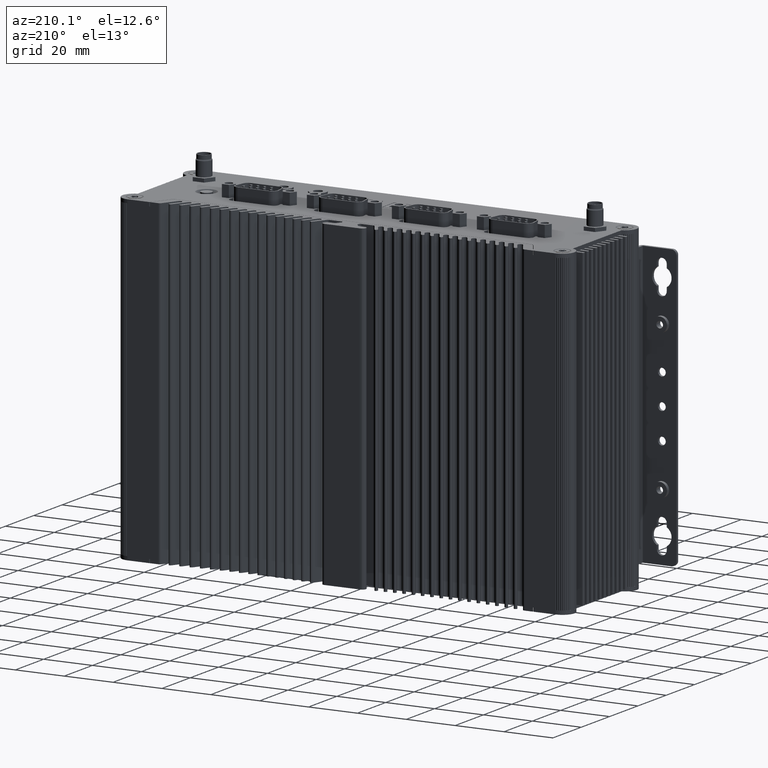
[diagram: clean part render]
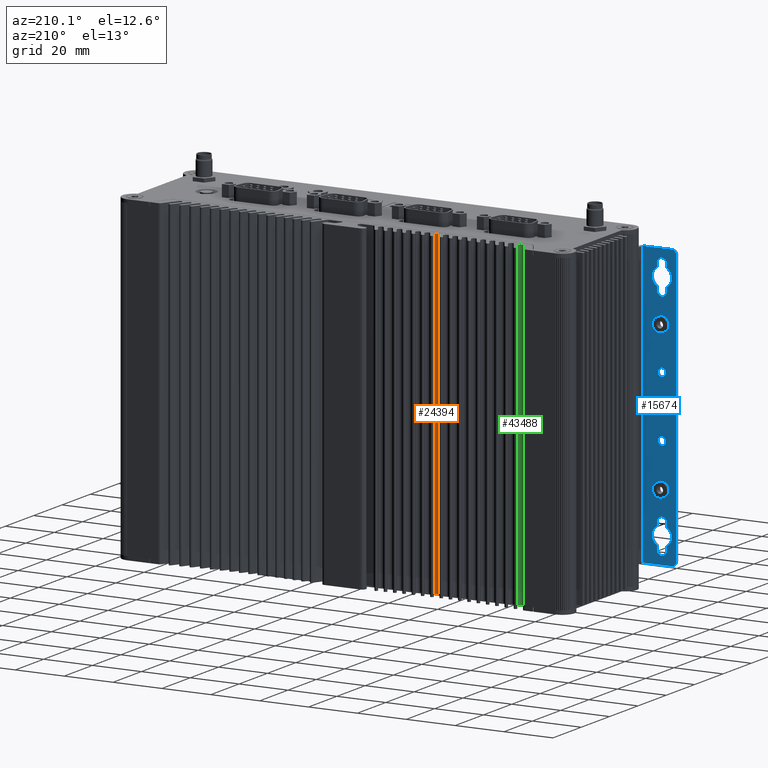
[diagram: same view with three faces highlighted in distinct colors, each labeled with its STEP entity id]
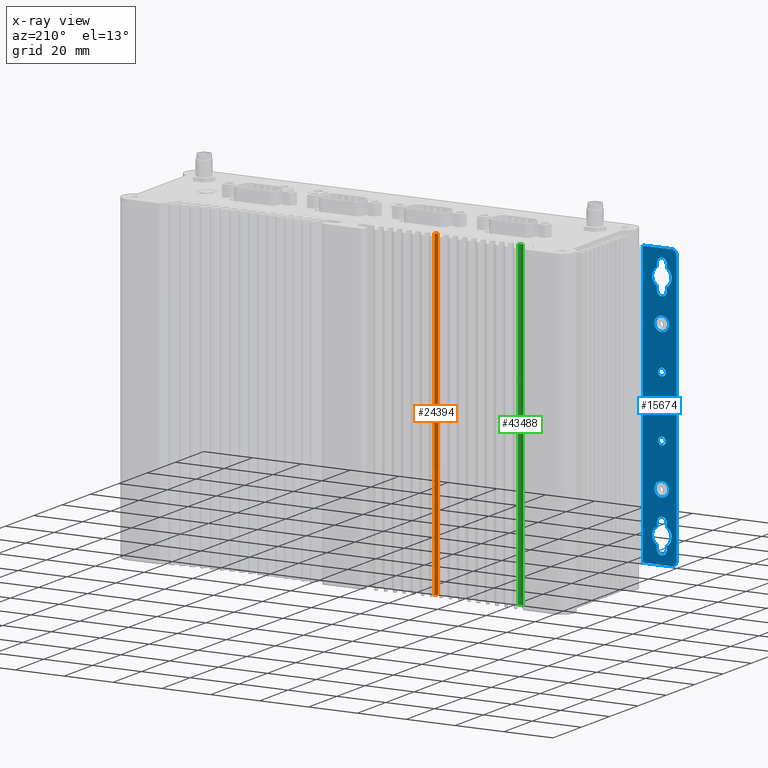
[diagram: x-ray of the same camera — body ghosted, the three highlighted faces saturated]
A machine part, auxiliary view with three faces highlighted in distinct colors.
The next image is the same camera in x-ray (body ghosted, the three faces saturated) — at least one of them is partly hidden behind the body in this view.
Their STEP definitions:

[orange] entity #24394 — the highlighted cylindrical surface (edge-blend (fillet) strip) has radius 1 mm, axis along (0, 0, 1).
#8144 = VERTEX_POINT ( 'NONE', #89115 ) ;
#8341 = VERTEX_POINT ( 'NONE', #72186 ) ;
#8479 = EDGE_LOOP ( 'NONE', ( #52579, #52937, #52946, #52933 ) ) ;
#16832 = LINE ( 'NONE', #16835, #65957 ) ;
#16835 = CARTESIAN_POINT ( 'NONE',  ( -6.164513203176323200, 12.88363076343135200, -130.9999999999813600 ) ) ;
#16837 = DIRECTION ( 'NONE',  ( 0.0000000000000000000, 0.0000000000000000000, 1.000000000000000000 ) ) ;
#24394 = ADVANCED_FACE ( 'NONE', ( #60762 ), #60768, .F. ) ;
#25921 = EDGE_CURVE ( 'NONE', #8341, #8144, #64538, .T. ) ;
#25928 = EDGE_CURVE ( 'NONE', #8341, #54229, #57277, .T. ) ;
#25929 = EDGE_CURVE ( 'NONE', #8144, #55057, #57279, .T. ) ;
#26136 = EDGE_CURVE ( 'NONE', #54229, #55057, #16832, .T. ) ;
#52579 = ORIENTED_EDGE ( 'NONE', *, *, #26136, .F. ) ;
#52933 = ORIENTED_EDGE ( 'NONE', *, *, #25929, .T. ) ;
#52937 = ORIENTED_EDGE ( 'NONE', *, *, #25928, .F. ) ;
#52946 = ORIENTED_EDGE ( 'NONE', *, *, #25921, .T. ) ;
#54229 = VERTEX_POINT ( 'NONE', #95617 ) ;
#55057 = VERTEX_POINT ( 'NONE', #56178 ) ;
#56178 = CARTESIAN_POINT ( 'NONE',  ( -6.164513203176323200, 12.88363076343135200, 1.863786902589481500E-011 ) ) ;
#57268 = VECTOR ( 'NONE', #64540, 1000.000000000000000 ) ;
#57277 = CIRCLE ( 'NONE', #57280, 0.9999999999202834300 ) ;
#57279 = CIRCLE ( 'NONE', #57282, 0.9999999999202834300 ) ;
#57280 = AXIS2_PLACEMENT_3D ( 'NONE', #64585, #64587, #64589 ) ;
#57282 = AXIS2_PLACEMENT_3D ( 'NONE', #64593, #64595, #64597 ) ;
#60762 = FACE_OUTER_BOUND ( 'NONE', #8479, .T. ) ;
#60764 = DIRECTION ( 'NONE',  ( 0.0000000000000000000, 0.0000000000000000000, 1.000000000000000000 ) ) ;
#60768 = CYLINDRICAL_SURFACE ( 'NONE', #94399, 0.9999999999202834300 ) ;
#60772 = CARTESIAN_POINT ( 'NONE',  ( -7.164513203096606600, 12.88363076343135200, -130.9999999999813600 ) ) ;
#60773 = DIRECTION ( 'NONE',  ( 1.000000000000000000, 0.0000000000000000000, 0.0000000000000000000 ) ) ;
#64538 = LINE ( 'NONE', #64539, #57268 ) ;
#64539 = CARTESIAN_POINT ( 'NONE',  ( -7.162452435180738600, 11.88363288689552800, -130.9999999999813600 ) ) ;
#64540 = DIRECTION ( 'NONE',  ( 0.0000000000000000000, 0.0000000000000000000, 1.000000000000000000 ) ) ;
#64585 = CARTESIAN_POINT ( 'NONE',  ( -7.164513203096606600, 12.88363076343135200, -130.9999999999813600 ) ) ;
#64587 = DIRECTION ( 'NONE',  ( -0.0000000000000000000, 0.0000000000000000000, 1.000000000000000000 ) ) ;
#64589 = DIRECTION ( 'NONE',  ( 1.000000000000000000, 0.0000000000000000000, 0.0000000000000000000 ) ) ;
#64593 = CARTESIAN_POINT ( 'NONE',  ( -7.164513203096606600, 12.88363076343135200, 1.863786902589481500E-011 ) ) ;
#64595 = DIRECTION ( 'NONE',  ( -0.0000000000000000000, 0.0000000000000000000, 1.000000000000000000 ) ) ;
#64597 = DIRECTION ( 'NONE',  ( 1.000000000000000000, 0.0000000000000000000, 0.0000000000000000000 ) ) ;
#65957 = VECTOR ( 'NONE', #16837, 1000.000000000000000 ) ;
#72186 = CARTESIAN_POINT ( 'NONE',  ( -7.162452435180738600, 11.88363288689552800, -130.9999999999813600 ) ) ;
#89115 = CARTESIAN_POINT ( 'NONE',  ( -7.162452435180738600, 11.88363288689552800, 1.863786902589481500E-011 ) ) ;
#94399 = AXIS2_PLACEMENT_3D ( 'NONE', #60772, #60764, #60773 ) ;
#95617 = CARTESIAN_POINT ( 'NONE',  ( -6.164513203176323200, 12.88363076343135200, -130.9999999999813600 ) ) ;

[blue] entity #15674 — the highlighted planar face has unit normal (0, -1, 0).
#593 = CARTESIAN_POINT ( 'NONE',  ( -68.63763054334334900, -40.01636936268161500, -112.8999999999816300 ) ) ;
#595 = DIRECTION ( 'NONE',  ( 0.0000000000000000000, -1.000000000000000000, 0.0000000000000000000 ) ) ;
#596 = DIRECTION ( 'NONE',  ( 6.938893903907197600E-015, 0.0000000000000000000, -1.000000000000000000 ) ) ;
#7635 = CIRCLE ( 'NONE', #7666, 3.000000000000002700 ) ;
#7664 = VECTOR ( 'NONE', #84098, 1000.000000000000000 ) ;
#7666 = AXIS2_PLACEMENT_3D ( 'NONE', #84095, #84096, #84097 ) ;
#7678 = CIRCLE ( 'NONE', #7682, 3.000000000000002700 ) ;
#7682 = AXIS2_PLACEMENT_3D ( 'NONE', #84123, #84124, #84125 ) ;
#7696 = CIRCLE ( 'NONE', #7702, 1.999999999999972200 ) ;
#7702 = AXIS2_PLACEMENT_3D ( 'NONE', #84158, #84159, #84160 ) ;
#7705 = VECTOR ( 'NONE', #41962, 1000.000000000000000 ) ;
#7706 = CIRCLE ( 'NONE', #7708, 2.000000000000001800 ) ;
#7708 = AXIS2_PLACEMENT_3D ( 'NONE', #41957, #41958, #41959 ) ;
#7709 = VECTOR ( 'NONE', #41973, 1000.000000000000000 ) ;
#7723 = VECTOR ( 'NONE', #41993, 1000.000000000000000 ) ;
#7735 = VECTOR ( 'NONE', #42020, 1000.000000000000000 ) ;
#7873 = CIRCLE ( 'NONE', #7880, 2.000000000000003600 ) ;
#7879 = VECTOR ( 'NONE', #42315, 1000.000000000000000 ) ;
#7880 = AXIS2_PLACEMENT_3D ( 'NONE', #42305, #42306, #42307 ) ;
#7900 = CIRCLE ( 'NONE', #7906, 4.000000000000045300 ) ;
#7906 = AXIS2_PLACEMENT_3D ( 'NONE', #42355, #42356, #42357 ) ;
#7907 = CIRCLE ( 'NONE', #7913, 2.000000000000029300 ) ;
#7910 = VECTOR ( 'NONE', #42377, 1000.000000000000000 ) ;
#7913 = AXIS2_PLACEMENT_3D ( 'NONE', #42371, #42372, #42373 ) ;
#7920 = CIRCLE ( 'NONE', #7922, 4.000000000000031100 ) ;
#7922 = AXIS2_PLACEMENT_3D ( 'NONE', #42386, #42387, #42388 ) ;
#7931 = VECTOR ( 'NONE', #42407, 1000.000000000000000 ) ;
#7937 = VECTOR ( 'NONE', #42418, 1000.000000000000000 ) ;
#7949 = CIRCLE ( 'NONE', #7952, 1.600000000000045800 ) ;
#7952 = AXIS2_PLACEMENT_3D ( 'NONE', #42438, #42439, #42440 ) ;
#7956 = CIRCLE ( 'NONE', #7958, 1.600000000000045800 ) ;
#7958 = AXIS2_PLACEMENT_3D ( 'NONE', #42450, #42451, #42452 ) ;
#7963 = CIRCLE ( 'NONE', #7965, 1.600000000000045800 ) ;
#7965 = AXIS2_PLACEMENT_3D ( 'NONE', #42462, #42463, #42464 ) ;
#7976 = CIRCLE ( 'NONE', #7980, 2.000000000000001800 ) ;
#7980 = AXIS2_PLACEMENT_3D ( 'NONE', #42491, #42492, #42493 ) ;
#7981 = VECTOR ( 'NONE', #42509, 1000.000000000000000 ) ;
#7994 = VECTOR ( 'NONE', #42522, 1000.000000000000000 ) ;
#7998 = CIRCLE ( 'NONE', #8004, 4.000000000000045300 ) ;
#8001 = VECTOR ( 'NONE', #42548, 1000.000000000000000 ) ;
#8004 = AXIS2_PLACEMENT_3D ( 'NONE', #42534, #42535, #42536 ) ;
#8020 = CIRCLE ( 'NONE', #20896, 2.000000000000001800 ) ;
#8772 = VERTEX_POINT ( 'NONE', #72493 ) ;
#8917 = VERTEX_POINT ( 'NONE', #72616 ) ;
#8991 = VERTEX_POINT ( 'NONE', #72681 ) ;
#8993 = VERTEX_POINT ( 'NONE', #72682 ) ;
#9062 = VERTEX_POINT ( 'NONE', #72743 ) ;
#9096 = VERTEX_POINT ( 'NONE', #72772 ) ;
#9479 = VERTEX_POINT ( 'NONE', #72983 ) ;
#9563 = VERTEX_POINT ( 'NONE', #73029 ) ;
#9604 = VERTEX_POINT ( 'NONE', #73048 ) ;
#9606 = VERTEX_POINT ( 'NONE', #73049 ) ;
#9621 = VERTEX_POINT ( 'NONE', #73056 ) ;
#9629 = VERTEX_POINT ( 'NONE', #73061 ) ;
#9638 = VERTEX_POINT ( 'NONE', #73066 ) ;
#9645 = VERTEX_POINT ( 'NONE', #73069 ) ;
#9655 = VERTEX_POINT ( 'NONE', #73073 ) ;
#9658 = VERTEX_POINT ( 'NONE', #73075 ) ;
#9674 = VERTEX_POINT ( 'NONE', #73083 ) ;
#9676 = VERTEX_POINT ( 'NONE', #73085 ) ;
#9693 = VERTEX_POINT ( 'NONE', #73092 ) ;
#9787 = VERTEX_POINT ( 'NONE', #73133 ) ;
#9790 = VERTEX_POINT ( 'NONE', #73135 ) ;
#9803 = VERTEX_POINT ( 'NONE', #73141 ) ;
#10053 = VERTEX_POINT ( 'NONE', #73268 ) ;
#10068 = VERTEX_POINT ( 'NONE', #73277 ) ;
#10091 = VERTEX_POINT ( 'NONE', #73290 ) ;
#10140 = EDGE_LOOP ( 'NONE', ( #46025, #46027, #46029, #46031, #46033, #46035 ) ) ;
#10149 = EDGE_LOOP ( 'NONE', ( #46067, #46069, #46071, #46073, #46075, #46077, #45668, #45614, #45622 ) ) ;
#10196 = VERTEX_POINT ( 'NONE', #73336 ) ;
#10214 = VERTEX_POINT ( 'NONE', #73347 ) ;
#10256 = VERTEX_POINT ( 'NONE', #73369 ) ;
#10329 = VERTEX_POINT ( 'NONE', #73404 ) ;
#10383 = VERTEX_POINT ( 'NONE', #73432 ) ;
#10419 = VERTEX_POINT ( 'NONE', #73453 ) ;
#10830 = VERTEX_POINT ( 'NONE', #33462 ) ;
#10869 = VERTEX_POINT ( 'NONE', #33473 ) ;
#15674 = ADVANCED_FACE ( 'NONE', ( #58624, #58628, #58632, #58636, #58622, #58626, #58630, #58634 ), #58643, .F. ) ;
#20896 = AXIS2_PLACEMENT_3D ( 'NONE', #42585, #42586, #42587 ) ;
#20904 = CIRCLE ( 'NONE', #20907, 2.000000000000001800 ) ;
#20907 = AXIS2_PLACEMENT_3D ( 'NONE', #42603, #42604, #42605 ) ;
#20911 = CIRCLE ( 'NONE', #20914, 1.600000000000045800 ) ;
#20914 = AXIS2_PLACEMENT_3D ( 'NONE', #42616, #42617, #42618 ) ;
#20916 = CIRCLE ( 'NONE', #20918, 1.600000000000045800 ) ;
#20918 = AXIS2_PLACEMENT_3D ( 'NONE', #42624, #42625, #42626 ) ;
#20929 = CIRCLE ( 'NONE', #20936, 1.600000000000045800 ) ;
#20936 = AXIS2_PLACEMENT_3D ( 'NONE', #42658, #42659, #42660 ) ;
#20946 = CIRCLE ( 'NONE', #20949, 2.000000000000029300 ) ;
#20949 = AXIS2_PLACEMENT_3D ( 'NONE', #42680, #42681, #42682 ) ;
#20954 = CIRCLE ( 'NONE', #20972, 3.000000000000002700 ) ;
#20972 = AXIS2_PLACEMENT_3D ( 'NONE', #42726, #42727, #42728 ) ;
#21010 = CIRCLE ( 'NONE', #21013, 3.000000000000002700 ) ;
#21013 = AXIS2_PLACEMENT_3D ( 'NONE', #42795, #42796, #42797 ) ;
#32072 = AXIS2_PLACEMENT_3D ( 'NONE', #58598, #58645, #58647 ) ;
#33462 = CARTESIAN_POINT ( 'NONE',  ( -70.63763054334367600, -40.01636936268161500, -13.89999999998155600 ) ) ;
#33473 = CARTESIAN_POINT ( 'NONE',  ( -60.83763054334386300, -40.01636936268161500, -8.399999999981542200 ) ) ;
#38058 = VERTEX_POINT ( 'NONE', #84972 ) ;
#41956 = LINE ( 'NONE', #41961, #7705 ) ;
#41957 = CARTESIAN_POINT ( 'NONE',  ( -72.63763054334329200, -40.01636936268161500, -121.3999999999816000 ) ) ;
#41958 = DIRECTION ( 'NONE',  ( 0.0000000000000000000, -1.000000000000000000, 0.0000000000000000000 ) ) ;
#41959 = DIRECTION ( 'NONE',  ( 6.938893903907222100E-015, 0.0000000000000000000, -1.000000000000000000 ) ) ;
#41961 = CARTESIAN_POINT ( 'NONE',  ( -74.63763054334297900, -40.01636936268161500, -123.3999999999816300 ) ) ;
#41962 = DIRECTION ( 'NONE',  ( -6.784696261598188700E-015, 0.0000000000000000000, 1.000000000000000000 ) ) ;
#41966 = LINE ( 'NONE', #41972, #7709 ) ;
#41972 = CARTESIAN_POINT ( 'NONE',  ( -74.63763054334297900, -40.01636936268161500, -123.3999999999816300 ) ) ;
#41973 = DIRECTION ( 'NONE',  ( 1.000000000000000000, 0.0000000000000000000, 6.784696261598188700E-015 ) ) ;
#41990 = LINE ( 'NONE', #41992, #7723 ) ;
#41992 = CARTESIAN_POINT ( 'NONE',  ( -60.83763054334308200, -40.01636936268161500, -123.3999999999815500 ) ) ;
#41993 = DIRECTION ( 'NONE',  ( -6.784696261598188700E-015, 0.0000000000000000000, 1.000000000000000000 ) ) ;
#42006 = LINE ( 'NONE', #42007, #7735 ) ;
#42007 = CARTESIAN_POINT ( 'NONE',  ( -60.83763054334386300, -40.01636936268161500, -8.399999999981542200 ) ) ;
#42020 = DIRECTION ( 'NONE',  ( 1.000000000000000000, 0.0000000000000000000, 6.784696261598188700E-015 ) ) ;
#42305 = CARTESIAN_POINT ( 'NONE',  ( -68.63763054334367600, -40.01636936268161500, -13.89999999998154400 ) ) ;
#42306 = DIRECTION ( 'NONE',  ( 0.0000000000000000000, -1.000000000000000000, 0.0000000000000000000 ) ) ;
#42307 = DIRECTION ( 'NONE',  ( 6.938893903907215800E-015, 0.0000000000000000000, -1.000000000000000000 ) ) ;
#42309 = LINE ( 'NONE', #42314, #7879 ) ;
#42314 = CARTESIAN_POINT ( 'NONE',  ( -66.63763054333502100, -40.01636936268161500, -123.3999999999820000 ) ) ;
#42315 = DIRECTION ( 'NONE',  ( -7.906962315308269600E-014, -0.0000000000000000000, 1.000000000000000000 ) ) ;
#42355 = CARTESIAN_POINT ( 'NONE',  ( -68.63763054334364700, -40.01636936268161500, -18.89999999998154900 ) ) ;
#42356 = DIRECTION ( 'NONE',  ( 0.0000000000000000000, -1.000000000000000000, 0.0000000000000000000 ) ) ;
#42357 = DIRECTION ( 'NONE',  ( 6.938893903907149500E-015, 0.0000000000000000000, -1.000000000000000000 ) ) ;
#42370 = LINE ( 'NONE', #42376, #7910 ) ;
#42371 = CARTESIAN_POINT ( 'NONE',  ( -68.63763054334360400, -40.01636936268161500, -23.89999999998155300 ) ) ;
#42372 = DIRECTION ( 'NONE',  ( 0.0000000000000000000, -1.000000000000000000, 0.0000000000000000000 ) ) ;
#42373 = DIRECTION ( 'NONE',  ( 6.938893903907126600E-015, 0.0000000000000000000, -1.000000000000000000 ) ) ;
#42376 = CARTESIAN_POINT ( 'NONE',  ( -66.63763054334293700, -40.01636936268161500, -123.3999999999815700 ) ) ;
#42377 = DIRECTION ( 'NONE',  ( -6.784696261598188700E-015, 0.0000000000000000000, 1.000000000000000000 ) ) ;
#42386 = CARTESIAN_POINT ( 'NONE',  ( -68.63763054334364700, -40.01636936268161500, -18.89999999998154900 ) ) ;
#42387 = DIRECTION ( 'NONE',  ( 0.0000000000000000000, -1.000000000000000000, 0.0000000000000000000 ) ) ;
#42388 = DIRECTION ( 'NONE',  ( 6.938893903907174700E-015, 0.0000000000000000000, -1.000000000000000000 ) ) ;
#42405 = LINE ( 'NONE', #42406, #7931 ) ;
#42406 = CARTESIAN_POINT ( 'NONE',  ( -70.63763054334300800, -40.01636936268161500, -123.3999999999816000 ) ) ;
#42407 = DIRECTION ( 'NONE',  ( 6.784696261598188700E-015, 0.0000000000000000000, -1.000000000000000000 ) ) ;
#42408 = CARTESIAN_POINT ( 'NONE',  ( -70.63763054334295100, -40.01636936268161500, -123.3999999999816000 ) ) ;
#42412 = LINE ( 'NONE', #42408, #7937 ) ;
#42418 = DIRECTION ( 'NONE',  ( 6.784696261598188700E-015, 0.0000000000000000000, -1.000000000000000000 ) ) ;
#42438 = CARTESIAN_POINT ( 'NONE',  ( -68.63763054334353300, -40.01636936268161500, -53.39999999998163800 ) ) ;
#42439 = DIRECTION ( 'NONE',  ( 0.0000000000000000000, -1.000000000000000000, 0.0000000000000000000 ) ) ;
#42440 = DIRECTION ( 'NONE',  ( 8.673617379883787800E-015, 0.0000000000000000000, -1.000000000000000000 ) ) ;
#42450 = CARTESIAN_POINT ( 'NONE',  ( -68.63763054334344800, -40.01636936268161500, -65.89999999998158800 ) ) ;
#42451 = DIRECTION ( 'NONE',  ( 0.0000000000000000000, -1.000000000000000000, 0.0000000000000000000 ) ) ;
#42452 = DIRECTION ( 'NONE',  ( 8.673617379883787800E-015, 0.0000000000000000000, -1.000000000000000000 ) ) ;
#42462 = CARTESIAN_POINT ( 'NONE',  ( -68.63763054334347700, -40.01636936268161500, -78.39999999998164500 ) ) ;
#42463 = DIRECTION ( 'NONE',  ( 0.0000000000000000000, -1.000000000000000000, 0.0000000000000000000 ) ) ;
#42464 = DIRECTION ( 'NONE',  ( 8.673617379883787800E-015, 0.0000000000000000000, -1.000000000000000000 ) ) ;
#42491 = CARTESIAN_POINT ( 'NONE',  ( -68.63763054334332000, -40.01636936268161500, -117.8999999999816300 ) ) ;
#42492 = DIRECTION ( 'NONE',  ( 0.0000000000000000000, -1.000000000000000000, 0.0000000000000000000 ) ) ;
#42493 = DIRECTION ( 'NONE',  ( 6.938893903907222100E-015, 0.0000000000000000000, -1.000000000000000000 ) ) ;
#42499 = LINE ( 'NONE', #42508, #7981 ) ;
#42508 = CARTESIAN_POINT ( 'NONE',  ( -70.63763054334327800, -40.01636936268161500, -123.3999999999816000 ) ) ;
#42509 = DIRECTION ( 'NONE',  ( -6.784696261598188700E-015, 0.0000000000000000000, 1.000000000000000000 ) ) ;
#42520 = LINE ( 'NONE', #42521, #7994 ) ;
#42521 = CARTESIAN_POINT ( 'NONE',  ( -66.63763054334327800, -40.01636936268161500, -123.3999999999815700 ) ) ;
#42522 = DIRECTION ( 'NONE',  ( 6.784696261598188700E-015, 0.0000000000000000000, -1.000000000000000000 ) ) ;
#42534 = CARTESIAN_POINT ( 'NONE',  ( -68.63763054334334900, -40.01636936268161500, -112.8999999999816300 ) ) ;
#42535 = DIRECTION ( 'NONE',  ( 0.0000000000000000000, -1.000000000000000000, 0.0000000000000000000 ) ) ;
#42536 = DIRECTION ( 'NONE',  ( 6.938893903907149500E-015, 0.0000000000000000000, -1.000000000000000000 ) ) ;
#42537 = LINE ( 'NONE', #42546, #8001 ) ;
#42546 = CARTESIAN_POINT ( 'NONE',  ( -66.63763054334265200, -40.01636936268161500, -123.3999999999817900 ) ) ;
#42548 = DIRECTION ( 'NONE',  ( 4.292715970734044200E-014, 0.0000000000000000000, -1.000000000000000000 ) ) ;
#42585 = CARTESIAN_POINT ( 'NONE',  ( -68.63763054334332000, -40.01636936268161500, -107.8999999999816200 ) ) ;
#42586 = DIRECTION ( 'NONE',  ( 0.0000000000000000000, -1.000000000000000000, 0.0000000000000000000 ) ) ;
#42587 = DIRECTION ( 'NONE',  ( 6.938893903907222100E-015, 0.0000000000000000000, -1.000000000000000000 ) ) ;
#42603 = CARTESIAN_POINT ( 'NONE',  ( -68.63763054334332000, -40.01636936268161500, -117.8999999999816300 ) ) ;
#42604 = DIRECTION ( 'NONE',  ( 0.0000000000000000000, -1.000000000000000000, 0.0000000000000000000 ) ) ;
#42605 = DIRECTION ( 'NONE',  ( 6.938893903907222100E-015, 0.0000000000000000000, -1.000000000000000000 ) ) ;
#42616 = CARTESIAN_POINT ( 'NONE',  ( -68.63763054334347700, -40.01636936268161500, -78.39999999998164500 ) ) ;
#42617 = DIRECTION ( 'NONE',  ( 0.0000000000000000000, -1.000000000000000000, 0.0000000000000000000 ) ) ;
#42618 = DIRECTION ( 'NONE',  ( 8.673617379883787800E-015, 0.0000000000000000000, -1.000000000000000000 ) ) ;
#42624 = CARTESIAN_POINT ( 'NONE',  ( -68.63763054334344800, -40.01636936268161500, -65.89999999998158800 ) ) ;
#42625 = DIRECTION ( 'NONE',  ( 0.0000000000000000000, -1.000000000000000000, 0.0000000000000000000 ) ) ;
#42626 = DIRECTION ( 'NONE',  ( 8.673617379883787800E-015, 0.0000000000000000000, -1.000000000000000000 ) ) ;
#42658 = CARTESIAN_POINT ( 'NONE',  ( -68.63763054334353300, -40.01636936268161500, -53.39999999998163800 ) ) ;
#42659 = DIRECTION ( 'NONE',  ( 0.0000000000000000000, -1.000000000000000000, 0.0000000000000000000 ) ) ;
#42660 = DIRECTION ( 'NONE',  ( 8.673617379883787800E-015, 0.0000000000000000000, -1.000000000000000000 ) ) ;
#42680 = CARTESIAN_POINT ( 'NONE',  ( -68.63763054334360400, -40.01636936268161500, -23.89999999998155300 ) ) ;
#42681 = DIRECTION ( 'NONE',  ( 0.0000000000000000000, -1.000000000000000000, 0.0000000000000000000 ) ) ;
#42682 = DIRECTION ( 'NONE',  ( 6.938893903907126600E-015, 0.0000000000000000000, -1.000000000000000000 ) ) ;
#42726 = CARTESIAN_POINT ( 'NONE',  ( -68.63763054334359000, -40.01636936268161500, -35.89999999998156700 ) ) ;
#42727 = DIRECTION ( 'NONE',  ( -0.0000000000000000000, 1.000000000000000000, -0.0000000000000000000 ) ) ;
#42728 = DIRECTION ( 'NONE',  ( 4.625929269271481400E-015, 0.0000000000000000000, -1.000000000000000000 ) ) ;
#42795 = CARTESIAN_POINT ( 'NONE',  ( -68.63763054334334900, -40.01636936268161500, -95.89999999998161700 ) ) ;
#42796 = DIRECTION ( 'NONE',  ( -0.0000000000000000000, 1.000000000000000000, -0.0000000000000000000 ) ) ;
#42797 = DIRECTION ( 'NONE',  ( 4.625929269271481400E-015, 0.0000000000000000000, -1.000000000000000000 ) ) ;
#45610 = ORIENTED_EDGE ( 'NONE', *, *, #49986, .F. ) ;
#45612 = ORIENTED_EDGE ( 'NONE', *, *, #50258, .F. ) ;
#45614 = ORIENTED_EDGE ( 'NONE', *, *, #49978, .F. ) ;
#45622 = ORIENTED_EDGE ( 'NONE', *, *, #95763, .T. ) ;
#45668 = ORIENTED_EDGE ( 'NONE', *, *, #50211, .T. ) ;
#46019 = ORIENTED_EDGE ( 'NONE', *, *, #50281, .F. ) ;
#46023 = ORIENTED_EDGE ( 'NONE', *, *, #49977, .F. ) ;
#46025 = ORIENTED_EDGE ( 'NONE', *, *, #49998, .F. ) ;
#46027 = ORIENTED_EDGE ( 'NONE', *, *, #50022, .T. ) ;
#46029 = ORIENTED_EDGE ( 'NONE', *, *, #50013, .F. ) ;
#46031 = ORIENTED_EDGE ( 'NONE', *, *, #50007, .F. ) ;
#46033 = ORIENTED_EDGE ( 'NONE', *, *, #50002, .F. ) ;
#46035 = ORIENTED_EDGE ( 'NONE', *, *, #50003, .T. ) ;
#46037 = ORIENTED_EDGE ( 'NONE', *, *, #50134, .T. ) ;
#46039 = ORIENTED_EDGE ( 'NONE', *, *, #50121, .T. ) ;
#46041 = ORIENTED_EDGE ( 'NONE', *, *, #50117, .T. ) ;
#46043 = ORIENTED_EDGE ( 'NONE', *, *, #50155, .T. ) ;
#46045 = ORIENTED_EDGE ( 'NONE', *, *, #50145, .T. ) ;
#46047 = ORIENTED_EDGE ( 'NONE', *, *, #50151, .T. ) ;
#46049 = ORIENTED_EDGE ( 'NONE', *, *, #50139, .T. ) ;
#46051 = ORIENTED_EDGE ( 'NONE', *, *, #50243, .T. ) ;
#46053 = ORIENTED_EDGE ( 'NONE', *, *, #50141, .T. ) ;
#46055 = ORIENTED_EDGE ( 'NONE', *, *, #50162, .T. ) ;
#46057 = ORIENTED_EDGE ( 'NONE', *, *, #50236, .T. ) ;
#46059 = ORIENTED_EDGE ( 'NONE', *, *, #50166, .T. ) ;
#46061 = ORIENTED_EDGE ( 'NONE', *, *, #50224, .T. ) ;
#46063 = ORIENTED_EDGE ( 'NONE', *, *, #50170, .T. ) ;
#46065 = ORIENTED_EDGE ( 'NONE', *, *, #50221, .T. ) ;
#46067 = ORIENTED_EDGE ( 'NONE', *, *, #50185, .F. ) ;
#46069 = ORIENTED_EDGE ( 'NONE', *, *, #50179, .T. ) ;
#46071 = ORIENTED_EDGE ( 'NONE', *, *, #50217, .T. ) ;
#46073 = ORIENTED_EDGE ( 'NONE', *, *, #50190, .F. ) ;
#46075 = ORIENTED_EDGE ( 'NONE', *, *, #50194, .T. ) ;
#46077 = ORIENTED_EDGE ( 'NONE', *, *, #50198, .F. ) ;
#47993 = EDGE_LOOP ( 'NONE', ( #46055, #46057 ) ) ;
#48528 = EDGE_LOOP ( 'NONE', ( #46059, #46061 ) ) ;
#48741 = EDGE_LOOP ( 'NONE', ( #46023, #46019 ) ) ;
#48829 = EDGE_LOOP ( 'NONE', ( #45610, #45612 ) ) ;
#48860 = EDGE_LOOP ( 'NONE', ( #46063, #46065 ) ) ;
#49226 = EDGE_LOOP ( 'NONE', ( #46037, #46039, #46041, #46043, #46045, #46047, #46049, #46051, #46053 ) ) ;
#49977 = EDGE_CURVE ( 'NONE', #9674, #10383, #7635, .T. ) ;
#49978 = EDGE_CURVE ( 'NONE', #8772, #9790, #84094, .T. ) ;
#49986 = EDGE_CURVE ( 'NONE', #9693, #10419, #7678, .T. ) ;
#49998 = EDGE_CURVE ( 'NONE', #9604, #9803, #7696, .T. ) ;
#50002 = EDGE_CURVE ( 'NONE', #9096, #9629, #7706, .T. ) ;
#50003 = EDGE_CURVE ( 'NONE', #9096, #9803, #41956, .T. ) ;
#50007 = EDGE_CURVE ( 'NONE', #9629, #9676, #41966, .T. ) ;
#50013 = EDGE_CURVE ( 'NONE', #9676, #10869, #41990, .T. ) ;
#50022 = EDGE_CURVE ( 'NONE', #9604, #10869, #42006, .T. ) ;
#50117 = EDGE_CURVE ( 'NONE', #9621, #10830, #7873, .T. ) ;
#50121 = EDGE_CURVE ( 'NONE', #9606, #9621, #42309, .T. ) ;
#50134 = EDGE_CURVE ( 'NONE', #10196, #9606, #7900, .T. ) ;
#50139 = EDGE_CURVE ( 'NONE', #10053, #9645, #7907, .T. ) ;
#50141 = EDGE_CURVE ( 'NONE', #9563, #10196, #42370, .T. ) ;
#50145 = EDGE_CURVE ( 'NONE', #10091, #10068, #7920, .T. ) ;
#50151 = EDGE_CURVE ( 'NONE', #10068, #10053, #42405, .T. ) ;
#50155 = EDGE_CURVE ( 'NONE', #10830, #10091, #42412, .T. ) ;
#50162 = EDGE_CURVE ( 'NONE', #9655, #9638, #7949, .T. ) ;
#50166 = EDGE_CURVE ( 'NONE', #9658, #38058, #7956, .T. ) ;
#50170 = EDGE_CURVE ( 'NONE', #8917, #9479, #7963, .T. ) ;
#50179 = EDGE_CURVE ( 'NONE', #10256, #8991, #7976, .T. ) ;
#50185 = EDGE_CURVE ( 'NONE', #10256, #10214, #42499, .T. ) ;
#50190 = EDGE_CURVE ( 'NONE', #10329, #8993, #42520, .T. ) ;
#50194 = EDGE_CURVE ( 'NONE', #10329, #9787, #7998, .T. ) ;
#50198 = EDGE_CURVE ( 'NONE', #9062, #9787, #42537, .T. ) ;
#50211 = EDGE_CURVE ( 'NONE', #9062, #9790, #8020, .T. ) ;
#50217 = EDGE_CURVE ( 'NONE', #8991, #8993, #20904, .T. ) ;
#50221 = EDGE_CURVE ( 'NONE', #9479, #8917, #20911, .T. ) ;
#50224 = EDGE_CURVE ( 'NONE', #38058, #9658, #20916, .T. ) ;
#50236 = EDGE_CURVE ( 'NONE', #9638, #9655, #20929, .T. ) ;
#50243 = EDGE_CURVE ( 'NONE', #9645, #9563, #20946, .T. ) ;
#50258 = EDGE_CURVE ( 'NONE', #10419, #9693, #20954, .T. ) ;
#50281 = EDGE_CURVE ( 'NONE', #10383, #9674, #21010, .T. ) ;
#58598 = CARTESIAN_POINT ( 'NONE',  ( -60.83763054334308200, -40.01636936268161500, -123.3999999999815500 ) ) ;
#58622 = FACE_BOUND ( 'NONE', #48528, .T. ) ;
#58624 = FACE_BOUND ( 'NONE', #48741, .T. ) ;
#58626 = FACE_BOUND ( 'NONE', #48860, .T. ) ;
#58628 = FACE_OUTER_BOUND ( 'NONE', #10140, .T. ) ;
#58630 = FACE_BOUND ( 'NONE', #10149, .T. ) ;
#58632 = FACE_BOUND ( 'NONE', #49226, .T. ) ;
#58634 = FACE_BOUND ( 'NONE', #48829, .T. ) ;
#58636 = FACE_BOUND ( 'NONE', #47993, .T. ) ;
#58643 = PLANE ( 'NONE',  #32072 ) ;
#58645 = DIRECTION ( 'NONE',  ( 0.0000000000000000000, -1.000000000000000000, 0.0000000000000000000 ) ) ;
#58647 = DIRECTION ( 'NONE',  ( 6.784696261598188700E-015, 0.0000000000000000000, -1.000000000000000000 ) ) ;
#65326 = CIRCLE ( 'NONE', #65331, 4.000000000000017800 ) ;
#65331 = AXIS2_PLACEMENT_3D ( 'NONE', #593, #595, #596 ) ;
#72493 = CARTESIAN_POINT ( 'NONE',  ( -70.63763054334337700, -40.01636936268161500, -109.4358983848437500 ) ) ;
#72616 = CARTESIAN_POINT ( 'NONE',  ( -68.63763054334346200, -40.01636936268161500, -79.99999999998169600 ) ) ;
#72681 = CARTESIAN_POINT ( 'NONE',  ( -68.63763054334330600, -40.01636936268161500, -119.8999999999816300 ) ) ;
#72682 = CARTESIAN_POINT ( 'NONE',  ( -66.63763054334330600, -40.01636936268161500, -117.8999999999816200 ) ) ;
#72743 = CARTESIAN_POINT ( 'NONE',  ( -66.63763054334332000, -40.01636936268161500, -107.8999999999816000 ) ) ;
#72772 = CARTESIAN_POINT ( 'NONE',  ( -74.63763054334299300, -40.01636936268161500, -121.3999999999816200 ) ) ;
#72983 = CARTESIAN_POINT ( 'NONE',  ( -68.63763054334349100, -40.01636936268161500, -76.79999999998160800 ) ) ;
#73029 = CARTESIAN_POINT ( 'NONE',  ( -66.63763054334360400, -40.01636936268161500, -23.89999999998153900 ) ) ;
#73048 = CARTESIAN_POINT ( 'NONE',  ( -72.63763054334374700, -40.01636936268161500, -8.399999999981622200 ) ) ;
#73049 = CARTESIAN_POINT ( 'NONE',  ( -66.63763054334354800, -40.01636936268161500, -15.43589838484376400 ) ) ;
#73056 = CARTESIAN_POINT ( 'NONE',  ( -66.63763054334367600, -40.01636936268161500, -13.89999999998153200 ) ) ;
#73061 = CARTESIAN_POINT ( 'NONE',  ( -72.63763054334327800, -40.01636936268161500, -123.3999999999816200 ) ) ;
#73066 = CARTESIAN_POINT ( 'NONE',  ( -68.63763054334354800, -40.01636936268161500, -51.79999999998158700 ) ) ;
#73069 = CARTESIAN_POINT ( 'NONE',  ( -68.63763054334359000, -40.01636936268161500, -25.89999999998158500 ) ) ;
#73073 = CARTESIAN_POINT ( 'NONE',  ( -68.63763054334351900, -40.01636936268161500, -54.99999999998168200 ) ) ;
#73075 = CARTESIAN_POINT ( 'NONE',  ( -68.63763054334343400, -40.01636936268161500, -67.49999999998162500 ) ) ;
#73083 = CARTESIAN_POINT ( 'NONE',  ( -68.63763054334333400, -40.01636936268161500, -98.89999999998161700 ) ) ;
#73085 = CARTESIAN_POINT ( 'NONE',  ( -60.83763054334308200, -40.01636936268161500, -123.3999999999815500 ) ) ;
#73092 = CARTESIAN_POINT ( 'NONE',  ( -68.63763054334359000, -40.01636936268161500, -38.89999999998156700 ) ) ;
#73133 = CARTESIAN_POINT ( 'NONE',  ( -66.63763054334324900, -40.01636936268161500, -109.4358983848438400 ) ) ;
#73135 = CARTESIAN_POINT ( 'NONE',  ( -70.63763054334333400, -40.01636936268161500, -107.8999999999816300 ) ) ;
#73141 = CARTESIAN_POINT ( 'NONE',  ( -74.63763054334374700, -40.01636936268161500, -10.39999999998163800 ) ) ;
#73268 = CARTESIAN_POINT ( 'NONE',  ( -70.63763054334367600, -40.01636936268161500, -23.89999999998156700 ) ) ;
#73277 = CARTESIAN_POINT ( 'NONE',  ( -70.63763054334367600, -40.01636936268161500, -22.36410161511933500 ) ) ;
#73290 = CARTESIAN_POINT ( 'NONE',  ( -70.63763054334367600, -40.01636936268161500, -15.43589838484379100 ) ) ;
#73336 = CARTESIAN_POINT ( 'NONE',  ( -66.63763054334361900, -40.01636936268161500, -22.36410161511930600 ) ) ;
#73347 = CARTESIAN_POINT ( 'NONE',  ( -70.63763054334332000, -40.01636936268161500, -116.3641016151193000 ) ) ;
#73369 = CARTESIAN_POINT ( 'NONE',  ( -70.63763054334332000, -40.01636936268161500, -117.8999999999816500 ) ) ;
#73404 = CARTESIAN_POINT ( 'NONE',  ( -66.63763054334332000, -40.01636936268161500, -116.3641016151193800 ) ) ;
#73432 = CARTESIAN_POINT ( 'NONE',  ( -68.63763054334336300, -40.01636936268161500, -92.89999999998160300 ) ) ;
#73453 = CARTESIAN_POINT ( 'NONE',  ( -68.63763054334360400, -40.01636936268161500, -32.89999999998156000 ) ) ;
#84091 = CARTESIAN_POINT ( 'NONE',  ( -70.63763054334378900, -40.01636936268161500, -123.3999999999812500 ) ) ;
#84094 = LINE ( 'NONE', #84091, #7664 ) ;
#84095 = CARTESIAN_POINT ( 'NONE',  ( -68.63763054334334900, -40.01636936268161500, -95.89999999998161700 ) ) ;
#84096 = DIRECTION ( 'NONE',  ( -0.0000000000000000000, 1.000000000000000000, -0.0000000000000000000 ) ) ;
#84097 = DIRECTION ( 'NONE',  ( 4.625929269271481400E-015, 0.0000000000000000000, -1.000000000000000000 ) ) ;
#84098 = DIRECTION ( 'NONE',  ( 2.935776718414667800E-014, 0.0000000000000000000, 1.000000000000000000 ) ) ;
#84123 = CARTESIAN_POINT ( 'NONE',  ( -68.63763054334359000, -40.01636936268161500, -35.89999999998156700 ) ) ;
#84124 = DIRECTION ( 'NONE',  ( -0.0000000000000000000, 1.000000000000000000, -0.0000000000000000000 ) ) ;
#84125 = DIRECTION ( 'NONE',  ( 4.625929269271481400E-015, 0.0000000000000000000, -1.000000000000000000 ) ) ;
#84158 = CARTESIAN_POINT ( 'NONE',  ( -72.63763054334371800, -40.01636936268161500, -10.39999999998162400 ) ) ;
#84159 = DIRECTION ( 'NONE',  ( 0.0000000000000000000, -1.000000000000000000, 0.0000000000000000000 ) ) ;
#84160 = DIRECTION ( 'NONE',  ( 6.938893903907324600E-015, 0.0000000000000000000, -1.000000000000000000 ) ) ;
#84972 = CARTESIAN_POINT ( 'NONE',  ( -68.63763054334346200, -40.01636936268161500, -64.29999999998153700 ) ) ;
#95763 = EDGE_CURVE ( 'NONE', #8772, #10214, #65326, .T. ) ;

[green] entity #43488 — the highlighted cylindrical surface (edge-blend (fillet) strip) has radius 1 mm, axis along (0, 0, 1).
#816 = EDGE_CURVE ( 'NONE', #55114, #54334, #29336, .T. ) ;
#1050 = EDGE_CURVE ( 'NONE', #2801, #54334, #30763, .T. ) ;
#2801 = VERTEX_POINT ( 'NONE', #90337 ) ;
#5851 = EDGE_CURVE ( 'NONE', #54362, #2801, #76551, .T. ) ;
#5855 = EDGE_CURVE ( 'NONE', #54362, #55114, #80948, .T. ) ;
#14859 = EDGE_LOOP ( 'NONE', ( #52049, #52040, #52047, #52044 ) ) ;
#29326 = CARTESIAN_POINT ( 'NONE',  ( -40.36451473917781400, 12.88363076656900900, -130.9999999999813600 ) ) ;
#29336 = LINE ( 'NONE', #29326, #29409 ) ;
#29345 = DIRECTION ( 'NONE',  ( 0.0000000000000000000, 0.0000000000000000000, 1.000000000000000000 ) ) ;
#29409 = VECTOR ( 'NONE', #29345, 1000.000000000000000 ) ;
#30654 = CARTESIAN_POINT ( 'NONE',  ( -41.36451490839351700, 12.88363076656900900, 1.863786902589481500E-011 ) ) ;
#30656 = DIRECTION ( 'NONE',  ( -0.0000000000000000000, 0.0000000000000000000, 1.000000000000000000 ) ) ;
#30658 = DIRECTION ( 'NONE',  ( 1.000000000000000000, 0.0000000000000000000, 0.0000000000000000000 ) ) ;
#30763 = CIRCLE ( 'NONE', #30767, 1.000000169215704800 ) ;
#30767 = AXIS2_PLACEMENT_3D ( 'NONE', #30654, #30656, #30658 ) ;
#43488 = ADVANCED_FACE ( 'NONE', ( #93316 ), #93318, .F. ) ;
#43998 = AXIS2_PLACEMENT_3D ( 'NONE', #93317, #93312, #93319 ) ;
#52040 = ORIENTED_EDGE ( 'NONE', *, *, #5855, .F. ) ;
#52044 = ORIENTED_EDGE ( 'NONE', *, *, #1050, .T. ) ;
#52047 = ORIENTED_EDGE ( 'NONE', *, *, #5851, .T. ) ;
#52049 = ORIENTED_EDGE ( 'NONE', *, *, #816, .F. ) ;
#54334 = VERTEX_POINT ( 'NONE', #95801 ) ;
#54362 = VERTEX_POINT ( 'NONE', #95850 ) ;
#55114 = VERTEX_POINT ( 'NONE', #56235 ) ;
#56235 = CARTESIAN_POINT ( 'NONE',  ( -40.36451473917781400, 12.88363076656900900, -130.9999999999813600 ) ) ;
#76551 = LINE ( 'NONE', #76552, #80937 ) ;
#76552 = CARTESIAN_POINT ( 'NONE',  ( -42.23054059469354400, 12.38363091746898300, -130.9999999999813600 ) ) ;
#76553 = DIRECTION ( 'NONE',  ( 0.0000000000000000000, 0.0000000000000000000, 1.000000000000000000 ) ) ;
#76563 = CARTESIAN_POINT ( 'NONE',  ( -41.36451490839351700, 12.88363076656900900, -130.9999999999813600 ) ) ;
#76564 = DIRECTION ( 'NONE',  ( -0.0000000000000000000, 0.0000000000000000000, 1.000000000000000000 ) ) ;
#76565 = DIRECTION ( 'NONE',  ( 1.000000000000000000, 0.0000000000000000000, 0.0000000000000000000 ) ) ;
#80937 = VECTOR ( 'NONE', #76553, 1000.000000000000000 ) ;
#80948 = CIRCLE ( 'NONE', #80952, 1.000000169215704800 ) ;
#80952 = AXIS2_PLACEMENT_3D ( 'NONE', #76563, #76564, #76565 ) ;
#90337 = CARTESIAN_POINT ( 'NONE',  ( -42.23054059469354400, 12.38363091746898300, 1.863786902589481500E-011 ) ) ;
#93312 = DIRECTION ( 'NONE',  ( 0.0000000000000000000, 0.0000000000000000000, 1.000000000000000000 ) ) ;
#93316 = FACE_OUTER_BOUND ( 'NONE', #14859, .T. ) ;
#93317 = CARTESIAN_POINT ( 'NONE',  ( -41.36451490839351700, 12.88363076656900900, -130.9999999999813600 ) ) ;
#93318 = CYLINDRICAL_SURFACE ( 'NONE', #43998, 1.000000169215704800 ) ;
#93319 = DIRECTION ( 'NONE',  ( 1.000000000000000000, 0.0000000000000000000, 0.0000000000000000000 ) ) ;
#95801 = CARTESIAN_POINT ( 'NONE',  ( -40.36451473917781400, 12.88363076656900900, 1.863786902589481500E-011 ) ) ;
#95850 = CARTESIAN_POINT ( 'NONE',  ( -42.23054059469354400, 12.38363091746898300, -130.9999999999813600 ) ) ;